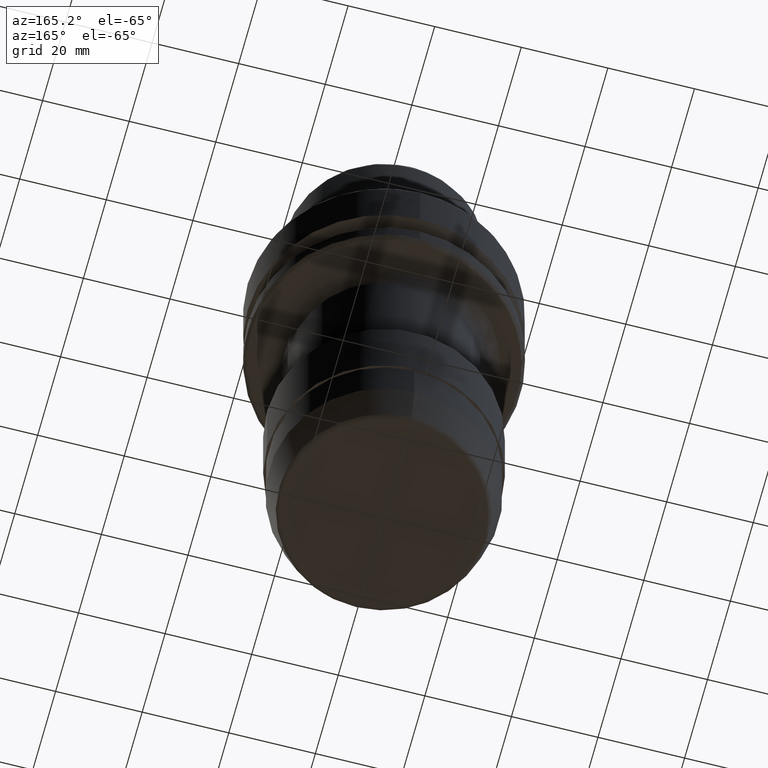
[diagram: clean part render]
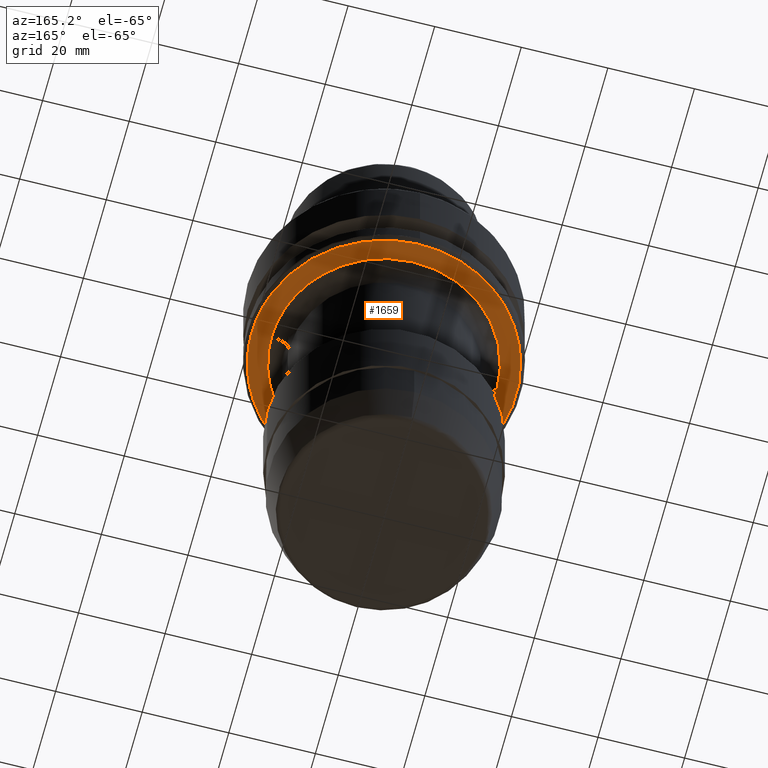
[diagram: same view with one face highlighted and labeled with its STEP entity id]
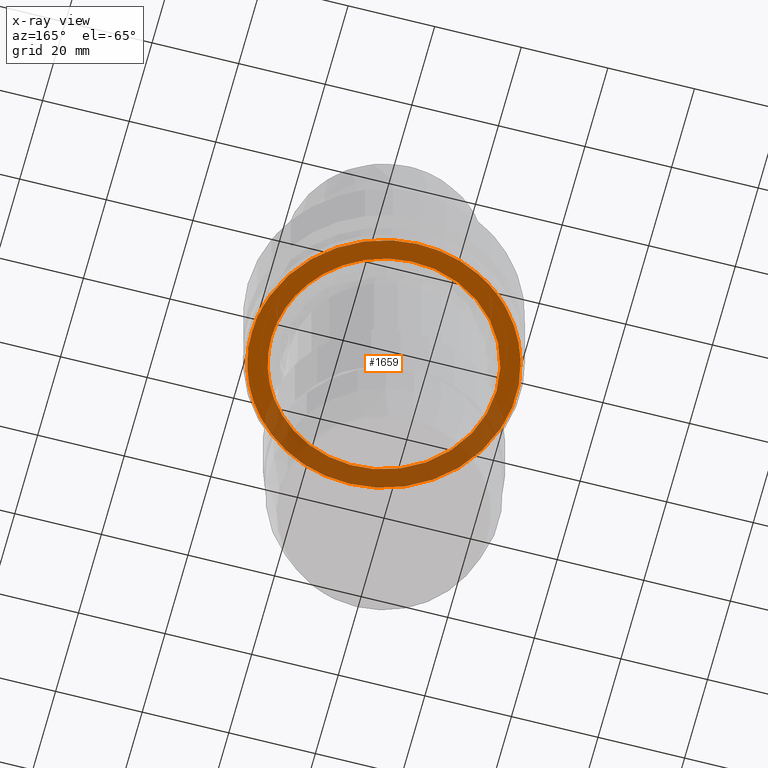
[diagram: x-ray of the same camera — body ghosted, the highlighted face saturated]
A machine part, auxiliary view. The second image highlights one B-rep face of the part: STEP entity #1659.
The next image is the same camera in x-ray: the body ghosted, the highlighted face saturated — about 37% of this face is hidden behind the body in this view.
In plain terms, the highlighted planar face has unit normal (0, 0, 1).
Its self-contained STEP definition (entity closure, byte-faithful):
#7 = CARTESIAN_POINT ( 'NONE',  ( -29.26865842934466500, 8.699999999374870900, -26.00000000000725100 ) ) ;
#21 =( BOUNDED_CURVE ( )  B_SPLINE_CURVE ( 3, ( #1140, #2828, #1698, #7 ),
 .UNSPECIFIED., .F., .F. ) 
 B_SPLINE_CURVE_WITH_KNOTS ( ( 4, 4 ),
 ( 0.0000000000000000000, 1.000000000000000000 ),
 .UNSPECIFIED. ) 
 CURVE ( )  GEOMETRIC_REPRESENTATION_ITEM ( )  RATIONAL_B_SPLINE_CURVE ( ( 0.9774664905432126600, 0.9625640733754528000, 0.9623316235582130000, 0.9767691410914934900 ) ) 
 REPRESENTATION_ITEM ( '' )  );
#28 = CARTESIAN_POINT ( 'NONE',  ( 2.699419017334541100, -25.85985077841953500, -26.00000000000000700 ) ) ;
#37 = CARTESIAN_POINT ( 'NONE',  ( 9.171749108616843700, -24.32865356366214700, -26.00000000000000700 ) ) ;
#51 = CARTESIAN_POINT ( 'NONE',  ( 14.44111240459192700, -21.62133235561396200, -25.99999999999999600 ) ) ;
#58 = CIRCLE ( 'NONE', #2512, 30.53431440413661900 ) ;
#66 = CARTESIAN_POINT ( 'NONE',  ( 17.95910095091542000, -18.81091676487721600, -25.99999999999999600 ) ) ;
#67 = CARTESIAN_POINT ( 'NONE',  ( -22.27147456930643400, -13.41573599016050800, -26.00000000000000700 ) ) ;
#75 = CARTESIAN_POINT ( 'NONE',  ( 20.76661904247118100, -15.64443211913571500, -26.00000000000000000 ) ) ;
#82 = CARTESIAN_POINT ( 'NONE',  ( 0.0000000000000000000, 0.0000000000000000000, -25.99999999999999600 ) ) ;
#85 = CARTESIAN_POINT ( 'NONE',  ( 23.21527982641972800, -11.70761705225817000, -25.99999999999999600 ) ) ;
#98 = CARTESIAN_POINT ( 'NONE',  ( 24.95353706692056100, -7.302129837528267100, -25.99999999999999600 ) ) ;
#110 = CARTESIAN_POINT ( 'NONE',  ( 25.99999999870138400, -1.155726200130458200, -26.00000000000000000 ) ) ;
#140 = CARTESIAN_POINT ( 'NONE',  ( 17.40962795942964900, -44.15360565803843000, -26.00000000001812600 ) ) ;
#144 = CARTESIAN_POINT ( 'NONE',  ( -25.77126760526531900, -3.441200361830959700, -26.00000000000000700 ) ) ;
#175 = PLANE ( 'NONE',  #1312 ) ;
#210 = CARTESIAN_POINT ( 'NONE',  ( -19.11481241806970000, -17.62454998139496000, -25.99999999999999600 ) ) ;
#224 = CARTESIAN_POINT ( 'NONE',  ( -16.73072901560746900, -19.90774041752376500, -26.00000000000000400 ) ) ;
#232 = CARTESIAN_POINT ( 'NONE',  ( 28.95262278532574400, -9.699999995481695300, -26.00000000000725100 ) ) ;
#237 = CARTESIAN_POINT ( 'NONE',  ( -12.29234183102374800, -22.91074956273438400, -26.00000000000000400 ) ) ;
#252 = CARTESIAN_POINT ( 'NONE',  ( 28.95262263248413200, 9.699999939774883700, -25.99999999999999600 ) ) ;
#286 = FACE_OUTER_BOUND ( 'NONE', #3679, .T. ) ;
#296 = CARTESIAN_POINT ( 'NONE',  ( -6.530187873164023500, -25.16693352489709700, -26.00000000000000700 ) ) ;
#305 = CARTESIAN_POINT ( 'NONE',  ( 3.104077502373156600, -25.81438741991323100, -26.00000000000000400 ) ) ;
#310 = CARTESIAN_POINT ( 'NONE',  ( -24.96571848952477500, -7.260370913550967300, -26.00000000000001100 ) ) ;
#319 =( BOUNDED_CURVE ( )  B_SPLINE_CURVE ( 3, ( #647, #2345, #2629, #938 ),
 .UNSPECIFIED., .F., .F. ) 
 B_SPLINE_CURVE_WITH_KNOTS ( ( 4, 4 ),
 ( 0.0000000000000000000, 1.000000000000000000 ),
 .UNSPECIFIED. ) 
 CURVE ( )  GEOMETRIC_REPRESENTATION_ITEM ( )  RATIONAL_B_SPLINE_CURVE ( ( 0.9565783021874275600, 0.3188594340624756300, 0.3188594340624756300, 0.9565783021874275600 ) ) 
 REPRESENTATION_ITEM ( '' )  );
#324 = CARTESIAN_POINT ( 'NONE',  ( 9.358604325387663200, -24.25738313436327000, -26.00000000000000000 ) ) ;
#327 = CARTESIAN_POINT ( 'NONE',  ( -23.39096264278418500, -11.35180003312314200, -26.00000000000000700 ) ) ;
#337 = CARTESIAN_POINT ( 'NONE',  ( 14.70086257796045900, -21.44501126591117700, -26.00000000000000000 ) ) ;
#347 = CARTESIAN_POINT ( 'NONE',  ( 18.81675184850077200, -17.94306487805947400, -26.00000000000000700 ) ) ;
#357 = CARTESIAN_POINT ( 'NONE',  ( 21.05356011743786100, -15.26193392743750700, -26.00000000000000700 ) ) ;
#369 = DIRECTION ( 'NONE',  ( 1.000000000000000000, 0.0000000000000000000, 0.0000000000000000000 ) ) ;
#371 = CARTESIAN_POINT ( 'NONE',  ( 23.32670334479440700, -11.48326905459742200, -25.99999999999999600 ) ) ;
#384 = CARTESIAN_POINT ( 'NONE',  ( 25.14310933392823700, -6.652242555135361900, -26.00000000000000000 ) ) ;
#408 = DIRECTION ( 'NONE',  ( -0.0000000000000000000, -0.0000000000000000000, 1.000000000000000000 ) ) ;
#422 = CARTESIAN_POINT ( 'NONE',  ( -25.99999999870137700, -0.5776924333929488500, -26.00000000000000000 ) ) ;
#430 = CARTESIAN_POINT ( 'NONE',  ( -25.51678912679054500, -5.064143519770637700, -26.00000000000000400 ) ) ;
#457 = DIRECTION ( 'NONE',  ( 1.000000000000000000, 0.0000000000000000000, 0.0000000000000000000 ) ) ;
#461 = DIRECTION ( 'NONE',  ( 1.000000000000000000, 0.0000000000000000000, 0.0000000000000000000 ) ) ;
#491 = CARTESIAN_POINT ( 'NONE',  ( -20.12041013876093100, -16.47773042771167300, -25.99999999999999600 ) ) ;
#507 = CARTESIAN_POINT ( 'NONE',  ( -15.49467714684868900, -20.88105631081244300, -26.00000000000000700 ) ) ;
#516 = CARTESIAN_POINT ( 'NONE',  ( -11.08457284708435400, -23.52875138185027700, -26.00000000000000400 ) ) ;
#566 = ORIENTED_EDGE ( 'NONE', *, *, #3385, .F. ) ;
#577 = CARTESIAN_POINT ( 'NONE',  ( -5.093354146014681800, -25.50617348351954000, -26.00000000000000400 ) ) ;
#581 = CARTESIAN_POINT ( 'NONE',  ( -23.91096421816126500, -10.22293659768529900, -26.00000000000000000 ) ) ;
#591 = CARTESIAN_POINT ( 'NONE',  ( 4.565620906199105100, -25.60590283288471300, -26.00000000000000700 ) ) ;
#599 = CARTESIAN_POINT ( 'NONE',  ( 10.61461157956287600, -23.74447183282820700, -25.99999999999999300 ) ) ;
#608 = CARTESIAN_POINT ( 'NONE',  ( 15.20271155685557900, -21.09770032548612700, -26.00000000000001100 ) ) ;
#624 = CARTESIAN_POINT ( 'NONE',  ( 0.0000000000000000000, 0.0000000000000000000, -25.99999999999999600 ) ) ;
#626 = CARTESIAN_POINT ( 'NONE',  ( 19.01593000700008000, -17.73119234980790200, -26.00000000000000700 ) ) ;
#634 = CARTESIAN_POINT ( 'NONE',  ( 21.82780260002554200, -14.12888966492166200, -26.00000000000000000 ) ) ;
#645 = CARTESIAN_POINT ( 'NONE',  ( 23.36068802580910000, -11.41397225909415700, -26.00000000000000400 ) ) ;
#647 = CARTESIAN_POINT ( 'NONE',  ( -25.99999999559441800, 0.0000000000000000000, -26.00000000004966000 ) ) ;
#659 = CARTESIAN_POINT ( 'NONE',  ( 25.59685017519188900, -4.581614076604892300, -26.00000000000000700 ) ) ;
#701 = EDGE_CURVE ( 'NONE', #3492, #1633, #2280, .T. ) ;
#707 = CARTESIAN_POINT ( 'NONE',  ( -25.11501117147758000, -6.729323851546483000, -26.00000000000000400 ) ) ;
#709 = CARTESIAN_POINT ( 'NONE',  ( -25.99999999559441800, 0.0000000000000000000, -26.00000000004966000 ) ) ;
#749 = ORIENTED_EDGE ( 'NONE', *, *, #701, .F. ) ;
#757 = VERTEX_POINT ( 'NONE', #2328 ) ;
#789 = CARTESIAN_POINT ( 'NONE',  ( -15.00297113894848000, -21.23474719910483400, -26.00000000000001100 ) ) ;
#801 = CARTESIAN_POINT ( 'NONE',  ( -9.839567213024972500, -24.06683094839971200, -26.00000000000000400 ) ) ;
#856 = EDGE_CURVE ( 'NONE', #3274, #1679, #2007, .T. ) ;
#862 = CARTESIAN_POINT ( 'NONE',  ( -23.51062201025822400, -11.10251412819851600, -26.00000000000000000 ) ) ;
#865 = CARTESIAN_POINT ( 'NONE',  ( -3.770023376448179900, -25.72662759692844100, -26.00000000000001100 ) ) ;
#871 = CARTESIAN_POINT ( 'NONE',  ( 5.877953733472719700, -25.32722066043405100, -26.00000000000001100 ) ) ;
#886 = CARTESIAN_POINT ( 'NONE',  ( 11.83429212174844400, -23.15121974454883600, -26.00000000000000400 ) ) ;
#901 = CARTESIAN_POINT ( 'NONE',  ( 16.44916333200937300, -20.13773886013979100, -26.00000000000000400 ) ) ;
#911 = DIRECTION ( 'NONE',  ( 1.000000000000000000, 0.0000000000000000000, 0.0000000000000000000 ) ) ;
#912 = CARTESIAN_POINT ( 'NONE',  ( 19.07623634922628500, -17.66629417041468400, -25.99999999999999600 ) ) ;
#919 = CARTESIAN_POINT ( 'NONE',  ( 25.99999999469236300, 0.0000000000000000000, -26.00000000004966000 ) ) ;
#921 = CARTESIAN_POINT ( 'NONE',  ( 22.12303054715417600, -13.65929384558842100, -26.00000000000000000 ) ) ;
#922 = CARTESIAN_POINT ( 'NONE',  ( -22.39997156096406500, -13.20071100744977600, -26.00000000000000700 ) ) ;
#936 = CARTESIAN_POINT ( 'NONE',  ( 24.13495363421125400, -9.719126481297061900, -25.99999999999998600 ) ) ;
#938 = CARTESIAN_POINT ( 'NONE',  ( 25.99999999469236300, 0.0000000000000000000, -26.00000000004966000 ) ) ;
#949 = CARTESIAN_POINT ( 'NONE',  ( 25.73059384995326600, -3.734748499080914100, -26.00000000000001100 ) ) ;
#983 = CARTESIAN_POINT ( 'NONE',  ( -20.86327166198763200, -15.51529953658392300, -26.00000000000000400 ) ) ;
#987 = CARTESIAN_POINT ( 'NONE',  ( -25.88735250608162300, -2.447933708096441800, -26.00000000000000400 ) ) ;
#998 = CARTESIAN_POINT ( 'NONE',  ( -24.99974116010406900, -7.142536460771572700, -26.00000000000000000 ) ) ;
#1026 = VERTEX_POINT ( 'NONE', #709 ) ;
#1067 = CARTESIAN_POINT ( 'NONE',  ( -18.29273037105059500, -18.48664045995769500, -26.00000000000000700 ) ) ;
#1084 = CARTESIAN_POINT ( 'NONE',  ( -14.85587953647309500, -21.33791746207089400, -25.99999999999999600 ) ) ;
#1091 = CARTESIAN_POINT ( 'NONE',  ( -9.539372939349211900, -24.18686555893072700, -26.00000000000001800 ) ) ;
#1107 = CARTESIAN_POINT ( 'NONE',  ( -1.865717142217779000, 38.79191972775703300, -26.00000000001812600 ) ) ;
#1140 = CARTESIAN_POINT ( 'NONE',  ( -23.07258886771760900, 19.99999997679846000, -25.99999999999999600 ) ) ;
#1147 = VERTEX_POINT ( 'NONE', #232 ) ;
#1151 = AXIS2_PLACEMENT_3D ( 'NONE', #2093, #408, #457 ) ;
#1155 = EDGE_CURVE ( 'NONE', #1679, #757, #21, .T. ) ;
#1157 = CARTESIAN_POINT ( 'NONE',  ( -2.162817311898970600, -25.93253219708177000, -26.00000000000000700 ) ) ;
#1170 = CARTESIAN_POINT ( 'NONE',  ( 6.271798372251150300, -25.23255629934144700, -26.00000000000000700 ) ) ;
#1182 = CARTESIAN_POINT ( 'NONE',  ( 12.12101987831672300, -23.00184736452651200, -26.00000000000001100 ) ) ;
#1193 = CARTESIAN_POINT ( 'NONE',  ( 16.93556252017271600, -19.72797693098209100, -26.00000000000000400 ) ) ;
#1204 = CARTESIAN_POINT ( 'NONE',  ( -18.77939473729395200, -17.98752814659083700, -26.00000000000001800 ) ) ;
#1209 = CARTESIAN_POINT ( 'NONE',  ( 19.83587399727333500, -16.81917303045221600, -26.00000000000000400 ) ) ;
#1219 = CARTESIAN_POINT ( 'NONE',  ( 22.19209709610919400, -13.54664077421555000, -26.00000000000001400 ) ) ;
#1226 = CARTESIAN_POINT ( 'NONE',  ( 24.77286243897659200, -7.897230194875702700, -26.00000000000000000 ) ) ;
#1236 = CARTESIAN_POINT ( 'NONE',  ( 25.76032881976667700, -3.522235787624422800, -26.00000000000000400 ) ) ;
#1262 = CARTESIAN_POINT ( 'NONE',  ( -29.26865842744274500, -8.700000005718068900, -26.00000000000725100 ) ) ;
#1269 = CARTESIAN_POINT ( 'NONE',  ( -19.61544421586655000, -17.06813388604442800, -26.00000000000000700 ) ) ;
#1270 = CARTESIAN_POINT ( 'NONE',  ( -18.91750100332566100, -43.52350469451424400, -26.00000000001812900 ) ) ;
#1271 = CARTESIAN_POINT ( 'NONE',  ( -25.80241749502393100, -3.200681717246538500, -26.00000000000000700 ) ) ;
#1282 = CARTESIAN_POINT ( 'NONE',  ( -24.97141933086464500, -7.240738157974325500, -26.00000000000000400 ) ) ;
#1302 = CARTESIAN_POINT ( 'NONE',  ( -29.61798612200000800, -30.90072634999999900, -26.00000000000000400 ) ) ;
#1312 = AXIS2_PLACEMENT_3D ( 'NONE', #1302, #2144, #461 ) ;
#1345 = CARTESIAN_POINT ( 'NONE',  ( -19.22661593429049300, -17.50264429759630900, -26.00000000000000700 ) ) ;
#1350 = CARTESIAN_POINT ( 'NONE',  ( -17.40084631656433000, -19.31927169498293800, -26.00000000000001100 ) ) ;
#1360 = CARTESIAN_POINT ( 'NONE',  ( -13.76062137467964400, -22.07007658985681400, -26.00000000000000000 ) ) ;
#1371 = CARTESIAN_POINT ( 'NONE',  ( -8.925726302353714600, -24.42564024173263700, -26.00000000000001400 ) ) ;
#1395 = CARTESIAN_POINT ( 'NONE',  ( 0.0000000000000000000, 0.0000000000000000000, -25.99999999999999600 ) ) ;
#1413 = ORIENTED_EDGE ( 'NONE', *, *, #1875, .F. ) ;
#1423 = CARTESIAN_POINT ( 'NONE',  ( -24.40003718513799700, -9.033029071876056200, -26.00000000000000400 ) ) ;
#1433 = CARTESIAN_POINT ( 'NONE',  ( 0.5414836911390309400, -26.00001145273573800, -26.00000000000001100 ) ) ;
#1440 = CARTESIAN_POINT ( 'NONE',  ( 7.674769882231852400, -24.85135117423471100, -25.99999999999999600 ) ) ;
#1450 = CARTESIAN_POINT ( 'NONE',  ( 12.67845677760088200, -22.70483438287747200, -26.00000000000000700 ) ) ;
#1454 = CARTESIAN_POINT ( 'NONE',  ( -23.19525046336434900, -11.75335007849345300, -26.00000000000001100 ) ) ;
#1465 = ORIENTED_EDGE ( 'NONE', *, *, #2300, .T. ) ;
#1467 = CARTESIAN_POINT ( 'NONE',  ( 17.05017914723804400, -19.62886286177257100, -26.00000000000000400 ) ) ;
#1477 = CARTESIAN_POINT ( 'NONE',  ( 20.56467028304945500, -15.90961770845109800, -26.00000000000000400 ) ) ;
#1485 = CARTESIAN_POINT ( 'NONE',  ( 22.42761734332781400, -13.15913694699146000, -26.00000000000000700 ) ) ;
#1499 = CARTESIAN_POINT ( 'NONE',  ( 24.91441086076905300, -7.434773084288097200, -26.00000000000000700 ) ) ;
#1502 = CARTESIAN_POINT ( 'NONE',  ( -23.64726345886120400, -10.81054572410780800, -26.00000000000001400 ) ) ;
#1514 = CARTESIAN_POINT ( 'NONE',  ( 25.76719121716917000, -3.471590755163676400, -26.00000000000000000 ) ) ;
#1545 = CARTESIAN_POINT ( 'NONE',  ( -25.77823460993110800, -3.388678674059125500, -26.00000000000000000 ) ) ;
#1625 = CARTESIAN_POINT ( 'NONE',  ( -17.18339688979845900, -19.51234589916271700, -26.00000000000000400 ) ) ;
#1627 = CARTESIAN_POINT ( 'NONE',  ( -19.13276620038463700, -17.60505558353956300, -25.99999999999999600 ) ) ;
#1633 = VERTEX_POINT ( 'NONE', #3598 ) ;
#1642 = CARTESIAN_POINT ( 'NONE',  ( -12.62164300453620800, -22.73151678644785500, -26.00000000000000400 ) ) ;
#1654 = CARTESIAN_POINT ( 'NONE',  ( -7.293632124261350200, -24.95849558504169600, -26.00000000000000400 ) ) ;
#1659 = ADVANCED_FACE ( 'NONE', ( #2272, #286 ), #175, .F. ) ;
#1674 = DIRECTION ( 'NONE',  ( 1.000000000000000000, 0.0000000000000000000, 0.0000000000000000000 ) ) ;
#1679 = VERTEX_POINT ( 'NONE', #1882 ) ;
#1698 = CARTESIAN_POINT ( 'NONE',  ( -28.02588401817713800, 12.88095861276396200, -26.00000000001812200 ) ) ;
#1705 = CARTESIAN_POINT ( 'NONE',  ( -23.44110351871851700, -11.24803929046374600, -26.00000000000000700 ) ) ;
#1714 = CARTESIAN_POINT ( 'NONE',  ( 2.295651948950659300, -25.90095536948675900, -26.00000000000000400 ) ) ;
#1728 = CARTESIAN_POINT ( 'NONE',  ( 8.986013709987775000, -24.39840953405492000, -26.00000000000000400 ) ) ;
#1735 = CIRCLE ( 'NONE', #3187, 30.53431440413661900 ) ;
#1740 = CARTESIAN_POINT ( 'NONE',  ( 14.07467311119753900, -21.86355022539571300, -25.99999999999999600 ) ) ;
#1749 = CARTESIAN_POINT ( 'NONE',  ( 17.44635417941422500, -19.28319429592597300, -26.00000000000000700 ) ) ;
#1762 = CARTESIAN_POINT ( 'NONE',  ( 20.73313626840071300, -15.68877808838678500, -26.00000000000000000 ) ) ;
#1777 = CARTESIAN_POINT ( 'NONE',  ( 23.05623687200619200, -12.02000164685844800, -26.00000000000000700 ) ) ;
#1789 = CARTESIAN_POINT ( 'NONE',  ( 24.94705279130280600, -7.324251362398852500, -26.00000000000000400 ) ) ;
#1798 = CARTESIAN_POINT ( 'NONE',  ( 25.92330383351347600, -2.306168677930116000, -26.00000000000000400 ) ) ;
#1806 =( BOUNDED_CURVE ( )  B_SPLINE_CURVE ( 3, ( #252, #2770, #1107, #3103 ),
 .UNSPECIFIED., .F., .F. ) 
 B_SPLINE_CURVE_WITH_KNOTS ( ( 4, 4 ),
 ( 0.0000000000000000000, 1.000000000000000000 ),
 .UNSPECIFIED. ) 
 CURVE ( )  GEOMETRIC_REPRESENTATION_ITEM ( )  RATIONAL_B_SPLINE_CURVE ( ( 0.9678619356771655000, 0.6822568685370086200, 0.6834780745173557600, 0.9715255536182071400 ) ) 
 REPRESENTATION_ITEM ( '' )  );
#1839 = CARTESIAN_POINT ( 'NONE',  ( -25.77230357713734300, -3.433428692851685900, -26.00000000000000400 ) ) ;
#1868 = CARTESIAN_POINT ( 'NONE',  ( -20.00000000150188800, 23.07258909120591600, -26.00000000000725100 ) ) ;
#1875 = EDGE_CURVE ( 'NONE', #1633, #3274, #1806, .T. ) ;
#1882 = CARTESIAN_POINT ( 'NONE',  ( -23.07258886771760900, 19.99999997679846000, -25.99999999999999600 ) ) ;
#1919 = CARTESIAN_POINT ( 'NONE',  ( -17.11871299726111300, -19.56912238690468800, -26.00000000000000700 ) ) ;
#1930 = CARTESIAN_POINT ( 'NONE',  ( -12.34603787582811500, -22.88185336597208400, -26.00000000000001400 ) ) ;
#1935 = CARTESIAN_POINT ( 'NONE',  ( -20.81665982417940300, -15.57778597311122900, -26.00000000000000700 ) ) ;
#1939 = CARTESIAN_POINT ( 'NONE',  ( -6.656261248129980300, -25.13387420831441000, -26.00000000000000400 ) ) ;
#1953 = ORIENTED_EDGE ( 'NONE', *, *, #2742, .F. ) ;
#1987 = CARTESIAN_POINT ( 'NONE',  ( -24.96322599096967200, -7.268938644435469800, -26.00000000000000400 ) ) ;
#1990 = EDGE_CURVE ( 'NONE', #1026, #3539, #319, .T. ) ;
#2001 = CARTESIAN_POINT ( 'NONE',  ( 2.968476770617610900, -25.83033934940467400, -26.00000000000000700 ) ) ;
#2007 = CIRCLE ( 'NONE', #1151, 30.53431440413661900 ) ;
#2012 = CARTESIAN_POINT ( 'NONE',  ( 9.295421741208292200, -24.28166862894357800, -26.00000000000000000 ) ) ;
#2023 = CARTESIAN_POINT ( 'NONE',  ( 14.59710313301701100, -21.51577323065626900, -26.00000000000000700 ) ) ;
#2035 = CARTESIAN_POINT ( 'NONE',  ( 18.53464497335725300, -18.23628847913990500, -26.00000000000000400 ) ) ;
#2044 = CARTESIAN_POINT ( 'NONE',  ( 20.78415249155631300, -15.62112912843327600, -26.00000000000000400 ) ) ;
#2054 = DIRECTION ( 'NONE',  ( -0.0000000000000000000, -0.0000000000000000000, 1.000000000000000000 ) ) ;
#2056 = CARTESIAN_POINT ( 'NONE',  ( 23.29347520419649700, -11.55068449316465300, -26.00000000000000000 ) ) ;
#2066 = CARTESIAN_POINT ( 'NONE',  ( 24.95713891539121900, -7.289808709584484300, -26.00000000000000700 ) ) ;
#2075 = CARTESIAN_POINT ( 'NONE',  ( -21.23656736513929700, -15.00289002545616100, -26.00000000000000000 ) ) ;
#2082 = CARTESIAN_POINT ( 'NONE',  ( 25.99999999469236300, 0.0000000000000000000, -26.00000000004966000 ) ) ;
#2093 = CARTESIAN_POINT ( 'NONE',  ( 0.0000000000000000000, 0.0000000000000000000, -25.99999999999999600 ) ) ;
#2113 = CARTESIAN_POINT ( 'NONE',  ( 28.95262278532574400, -9.699999995481695300, -26.00000000000725100 ) ) ;
#2114 = CARTESIAN_POINT ( 'NONE',  ( -25.68312096696675800, -4.099460013745800600, -26.00000000000001100 ) ) ;
#2140 = CARTESIAN_POINT ( 'NONE',  ( -19.17034733410781300, -17.56412491480388700, -25.99999999999999300 ) ) ;
#2144 = DIRECTION ( 'NONE',  ( 0.0000000000000000000, 0.0000000000000000000, 1.000000000000000000 ) ) ;
#2161 = CARTESIAN_POINT ( 'NONE',  ( -20.91054945717398200, -15.45165733599817800, -26.00000000000000400 ) ) ;
#2191 = CARTESIAN_POINT ( 'NONE',  ( -16.17040547620794300, -20.36984295777772400, -26.00000000000001100 ) ) ;
#2203 = CARTESIAN_POINT ( 'NONE',  ( -11.77891240513347200, -23.18459171969316300, -26.00000000000000700 ) ) ;
#2272 = FACE_BOUND ( 'NONE', #3031, .T. ) ;
#2275 = CARTESIAN_POINT ( 'NONE',  ( -5.879248505745605900, -25.33226589203532300, -26.00000000000000400 ) ) ;
#2279 = CARTESIAN_POINT ( 'NONE',  ( -23.41105321507900800, -11.31030885148167500, -26.00000000000000400 ) ) ;
#2280 = CIRCLE ( 'NONE', #2926, 30.53431440413661900 ) ;
#2287 = CARTESIAN_POINT ( 'NONE',  ( 3.770460417714454500, -25.73077716002119400, -26.00000000000000400 ) ) ;
#2295 = CARTESIAN_POINT ( 'NONE',  ( 9.900976713419435500, -24.04659528795299300, -26.00000000000001100 ) ) ;
#2300 = EDGE_CURVE ( 'NONE', #1026, #3539, #3497, .T. ) ;
#2310 = CARTESIAN_POINT ( 'NONE',  ( 14.75446532502382600, -21.40816112319616200, -26.00000000000000700 ) ) ;
#2321 = CARTESIAN_POINT ( 'NONE',  ( 18.95638900205320400, -17.79497571296631600, -26.00000000000000700 ) ) ;
#2328 = CARTESIAN_POINT ( 'NONE',  ( -29.26865842934466500, 8.699999999374870900, -26.00000000000725100 ) ) ;
#2330 = CARTESIAN_POINT ( 'NONE',  ( 21.42117827750319100, -14.74606983375152000, -26.00000000000000000 ) ) ;
#2343 = CARTESIAN_POINT ( 'NONE',  ( 23.34879229093444800, -11.43829017832434900, -26.00000000000001400 ) ) ;
#2345 = CARTESIAN_POINT ( 'NONE',  ( -25.99999999870136200, 51.99999999654311700, -26.00000000008277100 ) ) ;
#2349 = ORIENTED_EDGE ( 'NONE', *, *, #1155, .F. ) ;
#2356 = CARTESIAN_POINT ( 'NONE',  ( 25.38168027335745700, -5.702840401085223800, -26.00000000000000000 ) ) ;
#2359 = CARTESIAN_POINT ( 'NONE',  ( -23.38175751895678200, -11.37075269794110200, -26.00000000000000700 ) ) ;
#2390 = CARTESIAN_POINT ( 'NONE',  ( -25.99999999559441800, 0.0000000000000000000, -26.00000000004966000 ) ) ;
#2404 =( BOUNDED_CURVE ( )  B_SPLINE_CURVE ( 3, ( #3282, #1270, #140, #2113 ),
 .UNSPECIFIED., .F., .F. ) 
 B_SPLINE_CURVE_WITH_KNOTS ( ( 4, 4 ),
 ( 0.0000000000000000000, 1.000000000000000000 ),
 .UNSPECIFIED. ) 
 CURVE ( )  GEOMETRIC_REPRESENTATION_ITEM ( )  RATIONAL_B_SPLINE_CURVE ( ( 0.9619637142093422400, 0.5138822545309554800, 0.5137910265579066500, 0.9616900302901957300 ) ) 
 REPRESENTATION_ITEM ( '' )  );
#2407 = CARTESIAN_POINT ( 'NONE',  ( -25.25947975039186500, -6.176455722265733300, -26.00000000000001100 ) ) ;
#2484 = CARTESIAN_POINT ( 'NONE',  ( -15.15130859882078900, -21.12968641801443000, -26.00000000000001100 ) ) ;
#2497 = CARTESIAN_POINT ( 'NONE',  ( -10.25741779651842500, -23.89358536357137900, -26.00000000000000400 ) ) ;
#2512 = AXIS2_PLACEMENT_3D ( 'NONE', #624, #2604, #911 ) ;
#2555 = CARTESIAN_POINT ( 'NONE',  ( -4.300309108040544900, -25.64334420138121100, -26.00000000000000400 ) ) ;
#2570 = CARTESIAN_POINT ( 'NONE',  ( 5.485434875395929700, -25.41726759117658600, -26.00000000000000400 ) ) ;
#2575 = ORIENTED_EDGE ( 'NONE', *, *, #3505, .F. ) ;
#2583 = CARTESIAN_POINT ( 'NONE',  ( 11.43051103374043200, -23.35511673033824900, -26.00000000000000400 ) ) ;
#2594 = CARTESIAN_POINT ( 'NONE',  ( 30.53431440413661900, 0.0000000000000000000, -26.00000000000000000 ) ) ;
#2595 = CARTESIAN_POINT ( 'NONE',  ( 15.78799487160313200, -20.66764841229385000, -26.00000000000000400 ) ) ;
#2604 = DIRECTION ( 'NONE',  ( -0.0000000000000000000, -0.0000000000000000000, 1.000000000000000000 ) ) ;
#2606 = CARTESIAN_POINT ( 'NONE',  ( 19.05555656820183700, -17.68859975700929300, -26.00000000000000000 ) ) ;
#2614 = CARTESIAN_POINT ( 'NONE',  ( 22.02554887856495100, -13.81646489895767800, -26.00000000000001400 ) ) ;
#2626 = CARTESIAN_POINT ( 'NONE',  ( 23.69393819176736900, -10.73041577388019300, -26.00000000000000400 ) ) ;
#2629 = CARTESIAN_POINT ( 'NONE',  ( 25.99999999870136200, 51.99999999654311700, -26.00000000008277100 ) ) ;
#2631 = CARTESIAN_POINT ( 'NONE',  ( -22.23329943804789400, -13.47891188188173900, -25.99999999999999600 ) ) ;
#2638 = CARTESIAN_POINT ( 'NONE',  ( 25.68864441090084600, -4.017603294842607500, -26.00000000000000400 ) ) ;
#2665 = CARTESIAN_POINT ( 'NONE',  ( -22.31022461390290700, -13.35133580178157300, -26.00000000000000700 ) ) ;
#2675 = CARTESIAN_POINT ( 'NONE',  ( -20.53344279546827500, -15.95542441259019000, -26.00000000000001100 ) ) ;
#2679 = CARTESIAN_POINT ( 'NONE',  ( -25.97123893675591000, -1.442377687612521800, -26.00000000000000700 ) ) ;
#2691 = CARTESIAN_POINT ( 'NONE',  ( -22.91969818073970100, -12.28694697425921900, -26.00000000000000000 ) ) ;
#2692 = CARTESIAN_POINT ( 'NONE',  ( -25.03882340934168800, -7.004935923195160900, -26.00000000000001100 ) ) ;
#2742 = EDGE_CURVE ( 'NONE', #3661, #1147, #2404, .T. ) ;
#2770 = CARTESIAN_POINT ( 'NONE',  ( 21.31510106570908600, 32.49652428871123500, -26.00000000001811900 ) ) ;
#2779 = CARTESIAN_POINT ( 'NONE',  ( -14.90381738554082200, -21.30445550224532200, -26.00000000000000000 ) ) ;
#2788 = CARTESIAN_POINT ( 'NONE',  ( -9.659572736196960100, -24.13911375489067600, -26.00000000000000400 ) ) ;
#2828 = CARTESIAN_POINT ( 'NONE',  ( -25.92885183264137800, 16.70493115523219500, -26.00000000001811200 ) ) ;
#2854 = CARTESIAN_POINT ( 'NONE',  ( -3.505988278827025400, -25.76394866064808700, -26.00000000000000400 ) ) ;
#2864 = CARTESIAN_POINT ( 'NONE',  ( -21.65812015352187100, -14.39580852755537200, -25.99999999999999300 ) ) ;
#2867 = CARTESIAN_POINT ( 'NONE',  ( 6.139258054696831800, -25.26514420533352400, -26.00000000000001100 ) ) ;
#2876 = CARTESIAN_POINT ( 'NONE',  ( 12.00644787966315100, -23.06185972895100300, -26.00000000000000700 ) ) ;
#2889 = CARTESIAN_POINT ( 'NONE',  ( 16.77433204384604100, -19.86573850403868100, -26.00000000000001100 ) ) ;
#2892 = ORIENTED_EDGE ( 'NONE', *, *, #1990, .F. ) ;
#2901 = CARTESIAN_POINT ( 'NONE',  ( 19.39661183878865100, -17.31962112227521900, -26.00000000000000000 ) ) ;
#2912 = CARTESIAN_POINT ( 'NONE',  ( 22.16451023283234900, -13.59172939334719000, -26.00000000000000400 ) ) ;
#2923 = ORIENTED_EDGE ( 'NONE', *, *, #856, .F. ) ;
#2924 = CARTESIAN_POINT ( 'NONE',  ( 24.57297552496069000, -8.509494673625770400, -26.00000000000000700 ) ) ;
#2926 = AXIS2_PLACEMENT_3D ( 'NONE', #82, #2054, #369 ) ;
#2940 = CARTESIAN_POINT ( 'NONE',  ( 25.75058164977895800, -3.593108749979940800, -26.00000000000000400 ) ) ;
#2971 = CARTESIAN_POINT ( 'NONE',  ( -25.83282632614334100, -2.949900857645348000, -26.00000000000000000 ) ) ;
#2987 = CARTESIAN_POINT ( 'NONE',  ( -24.97995294344283200, -7.211285354997792200, -26.00000000000000400 ) ) ;
#3031 = EDGE_LOOP ( 'NONE', ( #1465, #2892 ) ) ;
#3048 = CARTESIAN_POINT ( 'NONE',  ( -22.24557741351220800, -13.45863538354510400, -26.00000000000000700 ) ) ;
#3063 = CARTESIAN_POINT ( 'NONE',  ( -17.70197161220835700, -19.04561512267612100, -25.99999999999999600 ) ) ;
#3075 = CARTESIAN_POINT ( 'NONE',  ( -14.39139786526138000, -21.65964961448818100, -26.00000000000000700 ) ) ;
#3090 = CARTESIAN_POINT ( 'NONE',  ( -9.480510626770875900, -24.21000251514081500, -26.00000000000001100 ) ) ;
#3103 = CARTESIAN_POINT ( 'NONE',  ( -20.00000000150188800, 23.07258909120591600, -26.00000000000725100 ) ) ;
#3152 = CARTESIAN_POINT ( 'NONE',  ( -1.082967382278072500, -25.99997708934320800, -26.00000000000000400 ) ) ;
#3165 = CARTESIAN_POINT ( 'NONE',  ( 6.912806509397095800, -25.06977479425793800, -26.00000000000001100 ) ) ;
#3184 = CARTESIAN_POINT ( 'NONE',  ( 12.17989878446532600, -22.97071922983634800, -26.00000000000000700 ) ) ;
#3187 = AXIS2_PLACEMENT_3D ( 'NONE', #1395, #3421, #1674 ) ;
#3198 = CARTESIAN_POINT ( 'NONE',  ( 17.00437117868595700, -19.66855881502798200, -26.00000000000000700 ) ) ;
#3206 = CARTESIAN_POINT ( 'NONE',  ( 20.32553937746429500, -16.21601911686201800, -26.00000000000000700 ) ) ;
#3219 = CARTESIAN_POINT ( 'NONE',  ( 22.20658252020408700, -13.52288034935492400, -26.00000000000000400 ) ) ;
#3230 = CARTESIAN_POINT ( 'NONE',  ( 24.86802488814483800, -7.589235811772072200, -26.00000000000000700 ) ) ;
#3243 = CARTESIAN_POINT ( 'NONE',  ( 25.76445330763460700, -3.491850284942402500, -26.00000000000000700 ) ) ;
#3274 = VERTEX_POINT ( 'NONE', #1868 ) ;
#3279 = CARTESIAN_POINT ( 'NONE',  ( -20.83168610249823200, -15.55768315457385700, -26.00000000000001100 ) ) ;
#3282 = CARTESIAN_POINT ( 'NONE',  ( -29.26865842744274500, -8.700000005718068900, -26.00000000000725100 ) ) ;
#3284 = CARTESIAN_POINT ( 'NONE',  ( -25.78642664417663300, -3.326021468253816100, -25.99999999999999600 ) ) ;
#3345 = CARTESIAN_POINT ( 'NONE',  ( -19.35718763190205700, -17.35859722538355900, -26.00000000000000700 ) ) ;
#3369 = CARTESIAN_POINT ( 'NONE',  ( -17.24884718968658200, -19.45464229137325100, -26.00000000000000700 ) ) ;
#3384 = CARTESIAN_POINT ( 'NONE',  ( -13.00464717664358700, -22.51644691237504100, -26.00000000000000400 ) ) ;
#3385 = EDGE_CURVE ( 'NONE', #1147, #3492, #1735, .T. ) ;
#3392 = CARTESIAN_POINT ( 'NONE',  ( -8.178511595528423300, -24.69015344310029600, -26.00000000000000700 ) ) ;
#3402 = CARTESIAN_POINT ( 'NONE',  ( -21.02016050427465300, -15.30269145275878800, -26.00000000000000400 ) ) ;
#3421 = DIRECTION ( 'NONE',  ( -0.0000000000000000000, -0.0000000000000000000, 1.000000000000000000 ) ) ;
#3460 = CARTESIAN_POINT ( 'NONE',  ( 1.352265720173480900, -25.97472821479177400, -26.00000000000000000 ) ) ;
#3474 = CARTESIAN_POINT ( 'NONE',  ( 8.551045964993422300, -24.55612344317572100, -26.00000000000000700 ) ) ;
#3487 = CARTESIAN_POINT ( 'NONE',  ( 13.33195081613185600, -22.33163894448109600, -26.00000000000000400 ) ) ;
#3490 = CARTESIAN_POINT ( 'NONE',  ( -24.75353649690646700, -7.987926724672267800, -26.00000000000000000 ) ) ;
#3492 = VERTEX_POINT ( 'NONE', #2594 ) ;
#3497 = B_SPLINE_CURVE_WITH_KNOTS ( 'NONE', 3,
 ( #2390, #422, #2679, #987, #2971, #1271, #3284, #1545, #3573, #1839, #144, #2114, #430, #2407, #707, #2692, #998, #2987, #1282, #310, #1987, #3490, #1423, #581, #1502, #862, #1705, #2279, #327, #2359, #1454, #2691, #3547, #922, #2665, #67, #3048, #2631, #3564, #2864, #2075, #3402, #2161, #983, #3279, #1935, #2675, #491, #1269, #3345, #1345, #2140, #1627, #210, #1204, #1067, #3063, #1350, #3369, #1625, #3652, #1919, #224, #2191, #507, #2484, #789, #2779, #1084, #3075, #1360, #3384, #1642, #3663, #1930, #237, #2203, #516, #2497, #801, #2788, #1091, #3090, #1371, #3392, #1654, #3676, #1939, #296, #2275, #577, #2555, #865, #2854, #1157, #3152, #1433, #3460, #1714, #28, #2001, #305, #2287, #591, #2570, #871, #2867, #1170, #3165, #1440, #3474, #1728, #37, #2012, #324, #2295, #599, #2583, #886, #2876, #1182, #3184, #1450, #3487, #1740, #51, #2023, #337, #2310, #608, #2595, #901, #2889, #1193, #3198, #1467, #3501, #1749, #66, #2035, #347, #2321, #626, #2606, #912, #2901, #1209, #3206, #1477, #3515, #1762, #75, #2044, #357, #2330, #634, #2614, #921, #2912, #1219, #3219, #1485, #3522, #1777, #85, #2056, #371, #2343, #645, #2626, #936, #2924, #1226, #3230, #1499, #3527, #1789, #98, #2066, #384, #2356, #659, #2638, #949, #2940, #1236, #3243, #1514, #3540, #1798, #110, #2082 ),
 .UNSPECIFIED., .F., .F.,
 ( 4, 1, 1, 1, 1, 1, 1, 2, 2, 1, 1, 1, 1, 1, 1, 2, 2, 1, 1, 1, 1, 1, 2, 2, 1, 1, 1, 1, 2, 2, 1, 1, 1, 1, 2, 2, 1, 1, 1, 1, 2, 2, 1, 1, 1, 1, 2, 2, 1, 1, 1, 2, 2, 1, 1, 1, 2, 2, 1, 1, 1, 2, 2, 1, 1, 2, 2, 1, 2, 2, 2, 1, 1, 2, 2, 1, 1, 2, 2, 1, 1, 1, 2, 2, 1, 1, 1, 2, 2, 1, 1, 1, 2, 2, 1, 1, 1, 1, 2, 2, 1, 1, 1, 1, 2, 2, 1, 1, 1, 1, 2, 2, 1, 1, 1, 1, 2, 2, 1, 1, 1, 1, 2, 2, 1, 1, 1, 1, 1, 1, 2, 2, 1, 1, 1, 1, 1, 1, 2, 2, 4 ),
 ( 0.0000000000000000000, 0.03125000000000206800, 0.04687500000000310200, 0.05468750000000362200, 0.05859375000000387900, 0.06054687500000400400, 0.06152343750000407300, 0.06201171875000410100, 0.06250000000000413600, 0.09375000000000764700, 0.1093750000000093700, 0.1171875000000102000, 0.1210937500000105900, 0.1230468750000108000, 0.1240234375000108700, 0.1245117187500108900, 0.1250000000000109100, 0.1562500000000123500, 0.1718750000000131000, 0.1796875000000134600, 0.1835937500000136800, 0.1855468750000137700, 0.1865234375000138200, 0.1875000000000138500, 0.2031250000000145400, 0.2109375000000148800, 0.2148437500000150200, 0.2167968750000151000, 0.2177734375000151300, 0.2187500000000151800, 0.2343750000000150400, 0.2421875000000149600, 0.2460937500000149000, 0.2480468750000148800, 0.2490234375000148800, 0.2500000000000148200, 0.2656250000000143200, 0.2734375000000140400, 0.2773437500000138800, 0.2792968750000137100, 0.2802734375000136000, 0.2812500000000134900, 0.2968750000000127700, 0.3046875000000124300, 0.3085937500000123200, 0.3105468750000122700, 0.3115234375000122100, 0.3125000000000121600, 0.3281250000000100500, 0.3359375000000089900, 0.3398437500000085500, 0.3417968750000082700, 0.3437500000000080500, 0.3593750000000061600, 0.3671875000000052700, 0.3710937500000047700, 0.3730468750000045500, 0.3750000000000042700, 0.3906250000000023300, 0.3984375000000013300, 0.4023437500000008900, 0.4042968750000006100, 0.4062500000000003300, 0.4218749999999982200, 0.4296874999999971700, 0.4335937499999966700, 0.4374999999999961100, 0.4531249999999939500, 0.4609374999999928400, 0.4687499999999917800, 0.4999999999999873400, 0.5156249999999851200, 0.5234374999999840100, 0.5273437499999834600, 0.5312499999999830100, 0.5468749999999807900, 0.5546874999999796800, 0.5585937499999791300, 0.5624999999999785700, 0.5781249999999763500, 0.5859374999999751300, 0.5898437499999746900, 0.5917968749999743500, 0.5937499999999740200, 0.6093749999999715800, 0.6171874999999704700, 0.6210937499999698000, 0.6230468749999694700, 0.6249999999999691400, 0.6406249999999668000, 0.6484374999999654700, 0.6523437499999649200, 0.6542968749999645800, 0.6562499999999642500, 0.6718749999999615900, 0.6796874999999602500, 0.6835937499999594800, 0.6855468749999592500, 0.6865234374999590300, 0.6874999999999589200, 0.7031249999999572600, 0.7109374999999564800, 0.7148437499999560400, 0.7167968749999558100, 0.7177734374999558100, 0.7187499999999557000, 0.7343749999999559200, 0.7421874999999559200, 0.7460937499999560400, 0.7480468749999560400, 0.7490234374999559200, 0.7499999999999559200, 0.7656249999999561500, 0.7734374999999562600, 0.7773437499999562600, 0.7792968749999562600, 0.7802734374999563700, 0.7812499999999564800, 0.7968749999999580300, 0.8046874999999588100, 0.8085937499999591400, 0.8105468749999593700, 0.8115234374999595900, 0.8124999999999597000, 0.8437499999999643600, 0.8593749999999665800, 0.8671874999999678000, 0.8710937499999683600, 0.8730468749999686900, 0.8740234374999689100, 0.8745117187499689100, 0.8749999999999689100, 0.9062499999999762400, 0.9218749999999797900, 0.9296874999999816800, 0.9335937499999825700, 0.9355468749999831200, 0.9365234374999833500, 0.9370117187499834600, 0.9374999999999836800, 1.000000000000000000 ),
 .UNSPECIFIED. ) ;
#3501 = CARTESIAN_POINT ( 'NONE',  ( 17.07398642452318400, -19.60815651950454000, -25.99999999999999600 ) ) ;
#3505 = EDGE_CURVE ( 'NONE', #757, #3661, #58, .T. ) ;
#3515 = CARTESIAN_POINT ( 'NONE',  ( 20.68281028971447100, -15.75521089134166900, -26.00000000000000400 ) ) ;
#3522 = CARTESIAN_POINT ( 'NONE',  ( 22.72754216773926200, -12.63884874171195300, -25.99999999999999600 ) ) ;
#3527 = CARTESIAN_POINT ( 'NONE',  ( 24.93730503409119600, -7.357425336563085100, -26.00000000000001100 ) ) ;
#3539 = VERTEX_POINT ( 'NONE', #919 ) ;
#3540 = CARTESIAN_POINT ( 'NONE',  ( 25.76871312555659100, -3.460273986175980400, -26.00000000000001400 ) ) ;
#3547 = CARTESIAN_POINT ( 'NONE',  ( -22.57678616043046600, -12.89803066632907000, -26.00000000000000000 ) ) ;
#3564 = CARTESIAN_POINT ( 'NONE',  ( -22.00014665782685300, -13.86263242656241200, -26.00000000000001400 ) ) ;
#3573 = CARTESIAN_POINT ( 'NONE',  ( -25.77468160764976400, -3.415529047326041100, -26.00000000000000400 ) ) ;
#3598 = CARTESIAN_POINT ( 'NONE',  ( 28.95262263248413200, 9.699999939774883700, -25.99999999999999600 ) ) ;
#3652 = CARTESIAN_POINT ( 'NONE',  ( -17.13969495277515500, -19.55074555722412600, -26.00000000000001100 ) ) ;
#3661 = VERTEX_POINT ( 'NONE', #1262 ) ;
#3663 = CARTESIAN_POINT ( 'NONE',  ( -12.45642327225676200, -22.82195059951056800, -26.00000000000000400 ) ) ;
#3676 = CARTESIAN_POINT ( 'NONE',  ( -6.911584712295978200, -25.06487294737638600, -25.99999999999999600 ) ) ;
#3679 = EDGE_LOOP ( 'NONE', ( #2349, #2923, #1413, #749, #566, #1953, #2575 ) ) ;